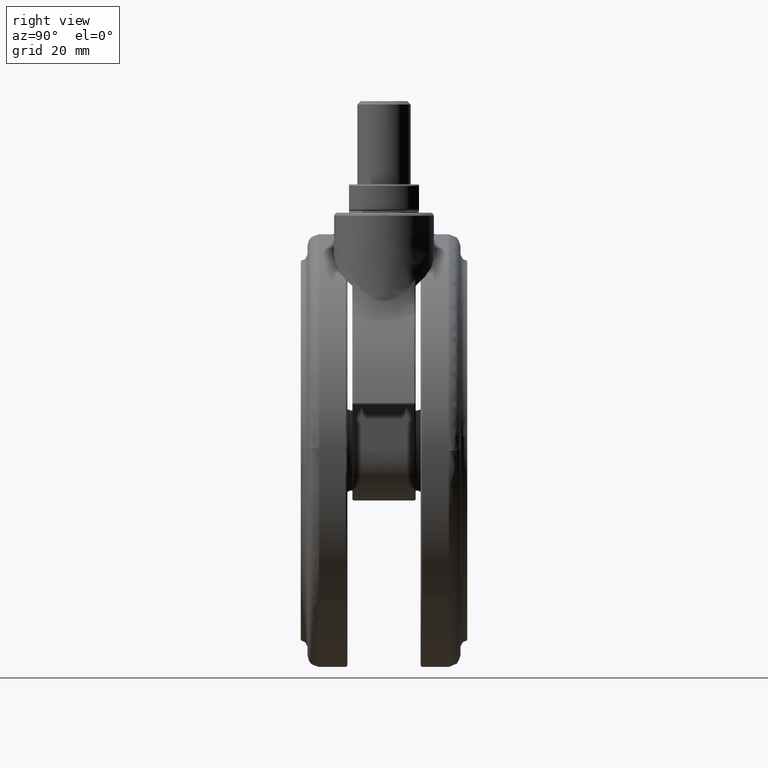
[diagram: clean part render]
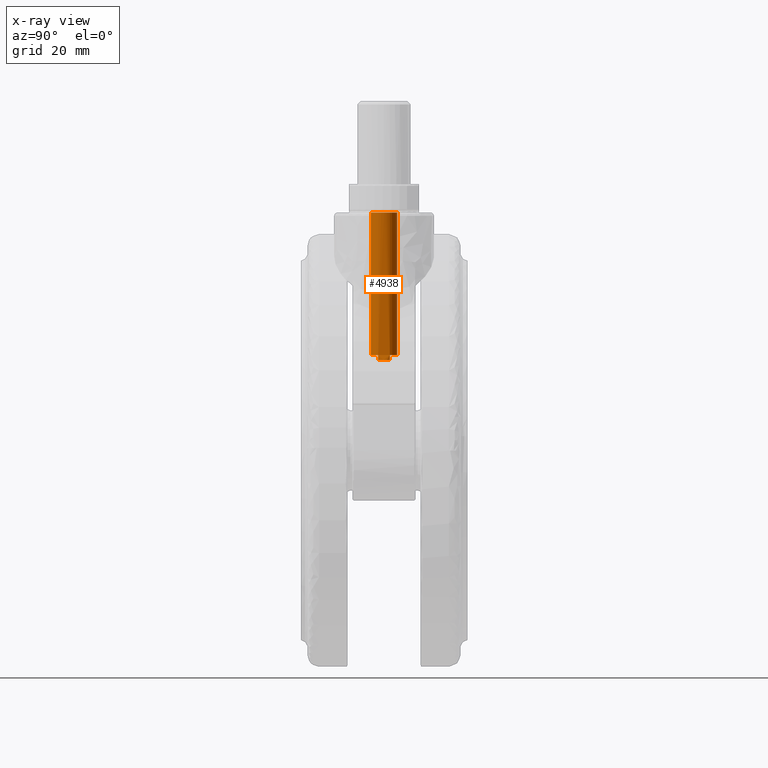
[diagram: x-ray — body ghosted, one internal face saturated and labeled with its STEP entity id]
A machine part, right view, then the same camera in x-ray: the body is ghosted and one INTERNAL B-rep face — a face not visible from any outside direction — is saturated and labeled: STEP entity #4938.
In plain terms, the highlighted face is a freeform B-spline surface patch.
Its self-contained STEP definition (entity closure, byte-faithful):
#4780=CARTESIAN_POINT('',(-0.865758456244427,3.905184028370706,-2.220446E-016));
#4781=VERTEX_POINT('',#4780);
#4795=CARTESIAN_POINT('',(0.865758456243971,-3.905184028370706,-2.220446E-016));
#4796=VERTEX_POINT('',#4795);
#4812=CARTESIAN_POINT('',(3.999999999999773,0.0,0.0));
#4813=VERTEX_POINT('',#4812);
#4814=CARTESIAN_POINT('',(3.999999999999773,0.0,0.0));
#4815=CARTESIAN_POINT('',(3.999999999999772,-3.210339406272178,0.0));
#4816=CARTESIAN_POINT('',(0.865758456243972,-3.905184028370706,0.0));
#4824=(BOUNDED_CURVE()B_SPLINE_CURVE(2,(#4814,#4815,#4816),.UNSPECIFIED.,.F.,.U.)B_SPLINE_CURVE_WITH_KNOTS((3,3),(0.500000000000000,0.712959885308884),.UNSPECIFIED.)CURVE()GEOMETRIC_REPRESENTATION_ITEM()RATIONAL_B_SPLINE_CURVE((1.0,0.750501974854950,0.926068516267362))REPRESENTATION_ITEM(''));
#4825=EDGE_CURVE('',#4813,#4796,#4824,.T.);
#4827=CARTESIAN_POINT('',(-0.865758456244427,3.905184028370706,0.0));
#4828=CARTESIAN_POINT('',(-0.438071246988078,4.000000000000000,0.0));
#4829=CARTESIAN_POINT('',(-2.273737E-013,4.0,0.0));
#4830=CARTESIAN_POINT('',(3.999999999999773,4.000000000000000,0.0));
#4831=CARTESIAN_POINT('',(3.999999999999773,0.0,0.0));
#4839=(BOUNDED_CURVE()B_SPLINE_CURVE(2,(#4827,#4828,#4829,#4830,#4831),.UNSPECIFIED.,.F.,.U.)B_SPLINE_CURVE_WITH_KNOTS((3,2,3),(0.212959885308884,0.250000000000000,0.500000000000000),.UNSPECIFIED.)CURVE()GEOMETRIC_REPRESENTATION_ITEM()RATIONAL_B_SPLINE_CURVE((0.926068516267362,0.956604806331598,1.0,0.707106781186548,1.0))REPRESENTATION_ITEM(''));
#4840=EDGE_CURVE('',#4781,#4813,#4839,.T.);
#4845=CARTESIAN_POINT('',(0.865758455752184,-3.905184028479732,-45.407500000000013));
#4846=CARTESIAN_POINT('',(4.770942484231916,-3.039425572727322,-45.407499999999999));
#4847=CARTESIAN_POINT('',(3.905184028479505,0.865758455752411,-45.407500000000013));
#4848=CARTESIAN_POINT('',(3.039425572727093,4.770942484232143,-45.407499999999999));
#4849=CARTESIAN_POINT('',(-0.865758455752639,3.905184028479732,-45.407500000000013));
#4850=CARTESIAN_POINT('',(0.865758455752184,-3.905184028479732,1.135187500000001));
#4851=CARTESIAN_POINT('',(4.770942484231916,-3.039425572727322,1.135187500000001));
#4852=CARTESIAN_POINT('',(3.905184028479505,0.865758455752411,1.135187500000001));
#4853=CARTESIAN_POINT('',(3.039425572727093,4.770942484232143,1.135187500000001));
#4854=CARTESIAN_POINT('',(-0.865758455752639,3.905184028479732,1.135187500000001));
#4862=(BOUNDED_SURFACE()B_SPLINE_SURFACE(2,1,((#4845,#4850),(#4846,#4851),(#4847,#4852),(#4848,#4853),(#4849,#4854)),.UNSPECIFIED.,.F.,.F.,.U.)B_SPLINE_SURFACE_WITH_KNOTS((3,2,3),(2,2),(0.0,6.627416997969519,13.254833995939039),(0.0,46.542687500000007),.UNSPECIFIED.)GEOMETRIC_REPRESENTATION_ITEM()RATIONAL_B_SPLINE_SURFACE(((1.0,1.0),(0.707106781186548,0.707106781186548),(1.0,1.0),(0.707106781186548,0.707106781186548),(1.0,1.0)))REPRESENTATION_ITEM('')SURFACE());
#4863=CARTESIAN_POINT('',(0.865758455795017,-3.905184028470237,-42.799999999999997));
#4864=VERTEX_POINT('',#4863);
#4865=CARTESIAN_POINT('',(3.596873642484310,-1.750000000000000,-42.799999999999997));
#4866=VERTEX_POINT('',#4865);
#4867=CARTESIAN_POINT('',(0.865758455795018,-3.905184028470238,-42.799999999999983));
#4868=CARTESIAN_POINT('',(2.751728453106782,-3.487074546139798,-42.799999999999997));
#4869=CARTESIAN_POINT('',(3.596873642484312,-1.750000000000001,-42.799999999999997));
#4877=(BOUNDED_CURVE()B_SPLINE_CURVE(2,(#4867,#4868,#4869),.UNSPECIFIED.,.F.,.U.)B_SPLINE_CURVE_WITH_KNOTS((3,3),(0.834101468146514,1.0),.UNSPECIFIED.)CURVE()GEOMETRIC_REPRESENTATION_ITEM()RATIONAL_B_SPLINE_CURVE((0.902872869841714,0.855639960426911,1.0))REPRESENTATION_ITEM(''));
#4878=EDGE_CURVE('',#4864,#4866,#4877,.T.);
#4879=ORIENTED_EDGE('',*,*,#4878,.T.);
#4880=CARTESIAN_POINT('',(3.596873642484310,-1.750000000000000,-44.299999999999997));
#4881=VERTEX_POINT('',#4880);
#4882=CARTESIAN_POINT('',(3.596873642484310,-1.750000000000000,-44.299999999999997));
#4883=CARTESIAN_POINT('',(3.596873642484310,-1.750000000000000,-42.799999999999997));
#4884=QUASI_UNIFORM_CURVE('',1,(#4882,#4883),.UNSPECIFIED.,.F.,.U.);
#4885=EDGE_CURVE('',#4881,#4866,#4884,.T.);
#4886=ORIENTED_EDGE('',*,*,#4885,.F.);
#4887=CARTESIAN_POINT('',(3.596873642484315,1.750000000000000,-44.299999999999997));
#4888=VERTEX_POINT('',#4887);
#4889=CARTESIAN_POINT('',(3.596873642484313,1.749999999999999,-44.299999999999997));
#4890=CARTESIAN_POINT('',(4.448307499884034,-4.336809E-016,-44.300000000000004));
#4891=CARTESIAN_POINT('',(3.596873642484313,-1.750000000000000,-44.299999999999997));
#4899=(BOUNDED_CURVE()B_SPLINE_CURVE(2,(#4889,#4890,#4891),.UNSPECIFIED.,.F.,.U.)CURVE()GEOMETRIC_REPRESENTATION_ITEM()QUASI_UNIFORM_CURVE()RATIONAL_B_SPLINE_CURVE((1.0,0.899218410621135,1.0))REPRESENTATION_ITEM(''));
#4900=EDGE_CURVE('',#4888,#4881,#4899,.T.);
#4901=ORIENTED_EDGE('',*,*,#4900,.F.);
#4902=CARTESIAN_POINT('',(3.596873642484315,1.750000000000000,-42.799999999999997));
#4903=VERTEX_POINT('',#4902);
#4904=CARTESIAN_POINT('',(3.596873642484315,1.750000000000000,-44.299999999999997));
#4905=CARTESIAN_POINT('',(3.596873642484315,1.750000000000000,-42.799999999999997));
#4906=QUASI_UNIFORM_CURVE('',1,(#4904,#4905),.UNSPECIFIED.,.F.,.U.);
#4907=EDGE_CURVE('',#4888,#4903,#4906,.T.);
#4908=ORIENTED_EDGE('',*,*,#4907,.T.);
#4909=CARTESIAN_POINT('',(-0.865758455188979,3.905184028604694,-42.799999999999997));
#4910=VERTEX_POINT('',#4909);
#4911=CARTESIAN_POINT('',(3.596873642484313,1.749999999999999,-42.799999999999997));
#4912=CARTESIAN_POINT('',(2.215909533902488,4.588373373357215,-42.799999999999983));
#4913=CARTESIAN_POINT('',(-0.865758455188979,3.905184028604694,-42.799999999999990));
#4921=(BOUNDED_CURVE()B_SPLINE_CURVE(2,(#4911,#4912,#4913),.UNSPECIFIED.,.F.,.U.)B_SPLINE_CURVE_WITH_KNOTS((3,3),(0.0,0.248347863585076),.UNSPECIFIED.)CURVE()GEOMETRIC_REPRESENTATION_ITEM()RATIONAL_B_SPLINE_CURVE((1.0,0.783894968722832,0.997143720067030))REPRESENTATION_ITEM(''));
#4922=EDGE_CURVE('',#4903,#4910,#4921,.T.);
#4923=ORIENTED_EDGE('',*,*,#4922,.T.);
#4924=CARTESIAN_POINT('',(-0.865758455188979,3.905184028604694,-42.799999999999997));
#4925=CARTESIAN_POINT('',(-0.865758456244427,3.905184028370706,-2.220446E-016));
#4926=QUASI_UNIFORM_CURVE('',1,(#4924,#4925),.UNSPECIFIED.,.F.,.U.);
#4927=EDGE_CURVE('',#4910,#4781,#4926,.T.);
#4928=ORIENTED_EDGE('',*,*,#4927,.T.);
#4929=ORIENTED_EDGE('',*,*,#4840,.T.);
#4930=ORIENTED_EDGE('',*,*,#4825,.T.);
#4931=CARTESIAN_POINT('',(0.865758455795017,-3.905184028470237,-42.799999999999997));
#4932=CARTESIAN_POINT('',(0.865758456243971,-3.905184028370706,-2.220446E-016));
#4933=QUASI_UNIFORM_CURVE('',1,(#4931,#4932),.UNSPECIFIED.,.F.,.U.);
#4934=EDGE_CURVE('',#4864,#4796,#4933,.T.);
#4935=ORIENTED_EDGE('',*,*,#4934,.F.);
#4936=EDGE_LOOP('',(#4879,#4886,#4901,#4908,#4923,#4928,#4929,#4930,#4935));
#4937=FACE_OUTER_BOUND('',#4936,.T.);
#4938=ADVANCED_FACE('',(#4937),#4862,.T.);